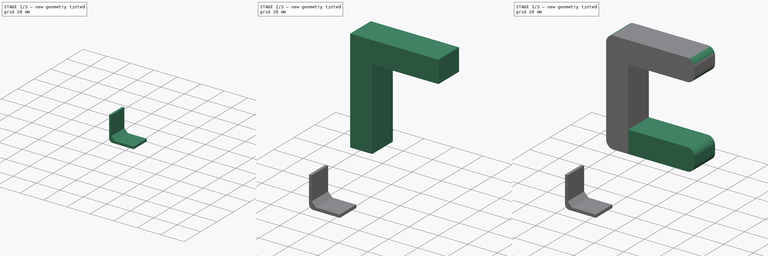
[diagram: build sequence overview — one tinted view per stage of 3, left to right]
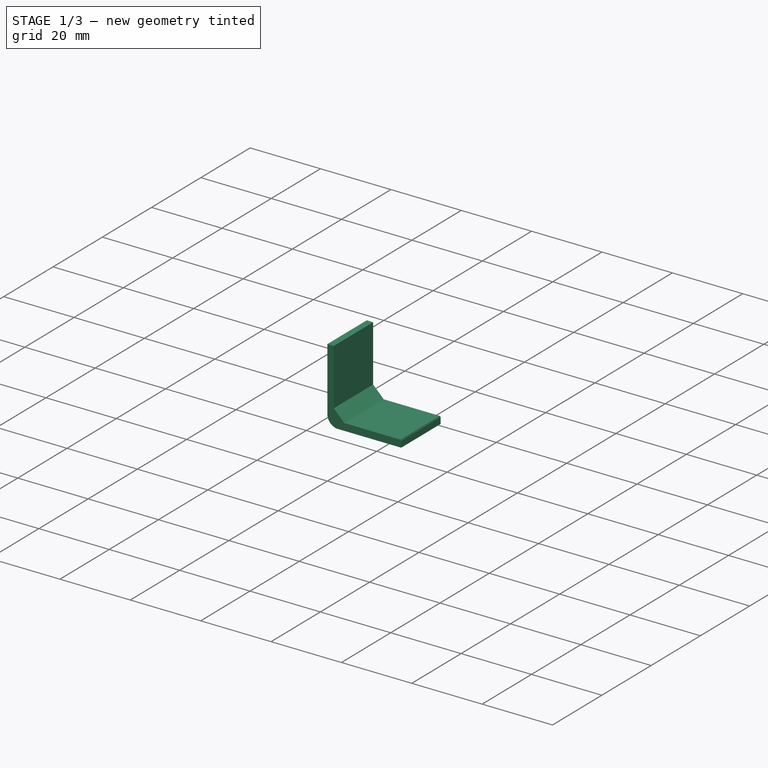
[diagram: stage 1 of 3 — iso view after this stage's code; geometry added in this stage tinted green]
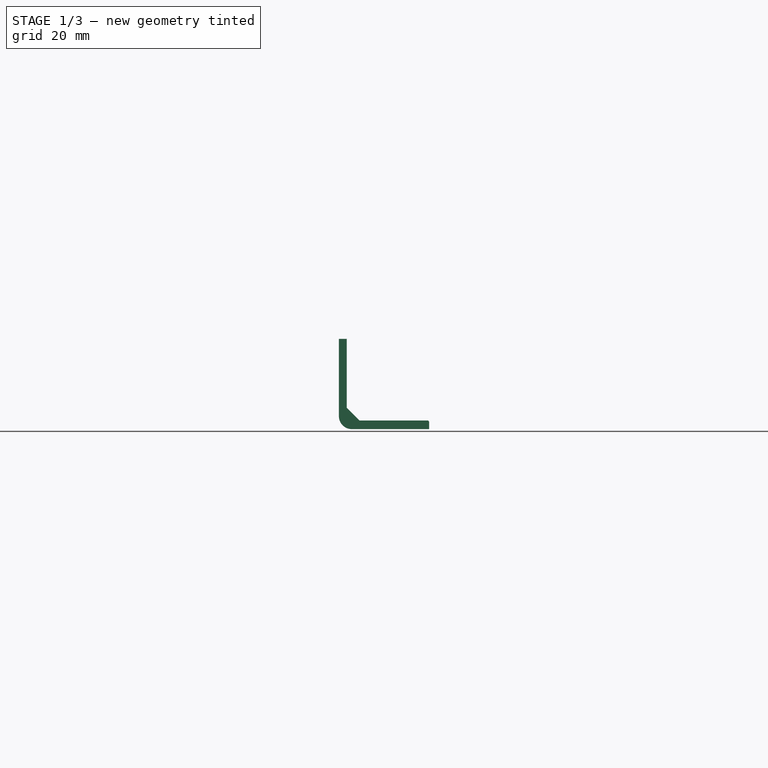
[diagram: stage 1 of 3 — front view after this stage's code; geometry added in this stage tinted green]
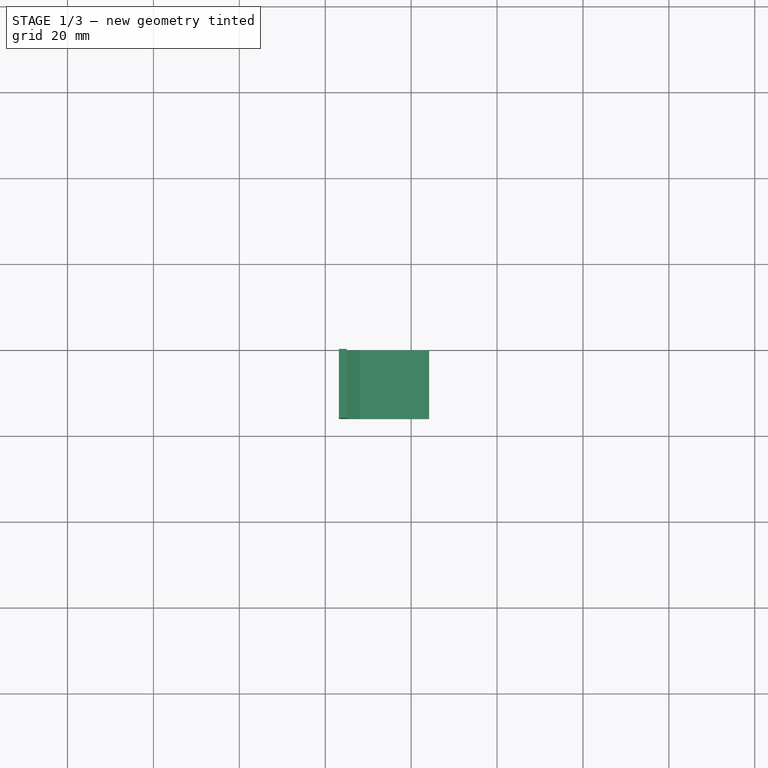
[diagram: stage 1 of 3 — top view after this stage's code; geometry added in this stage tinted green]
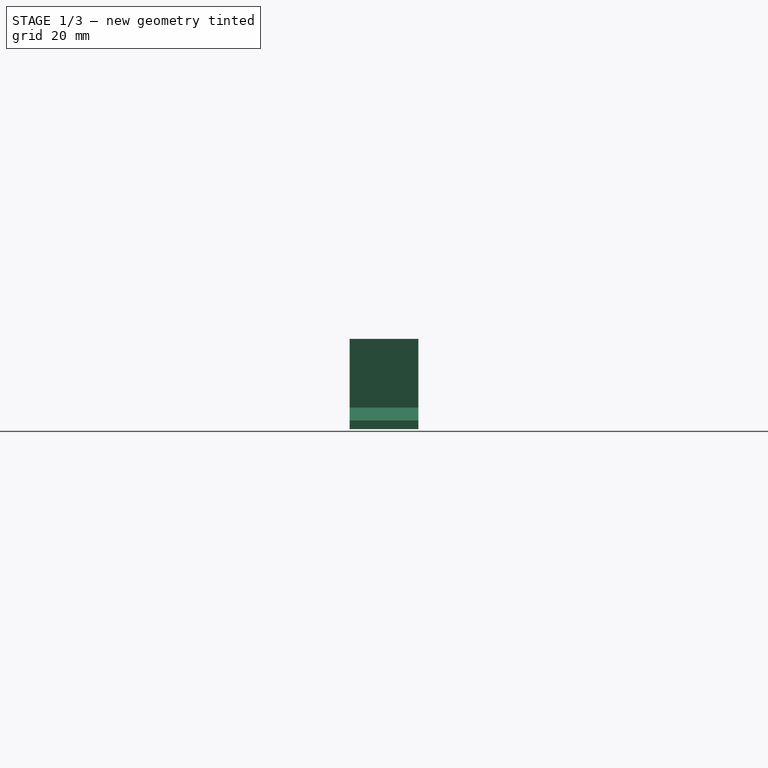
[diagram: stage 1 of 3 — right view after this stage's code; geometry added in this stage tinted green]
FCSTD DOCUMENT  (FreeCAD 0.18R4 (GitTag))
Label: reforzador
License: All rights reserved
LicenseURL: http://en.wikipedia.org/wiki/All_rights_reserved
objects: Part::Box×3, Sketcher::SketchObject×3, Spreadsheet::Sheet×3, PartDesign::Pad×3, PartDesign::Body×3, Part::MultiFuse×1, Part::Fillet×1, Part::Feature×1
note: 18 computed .brp shape members not serialized (recipe doc carries the construction recipe); baked Part::Feature solids carry a one-line shape summary decoded from their .brp

FEATURE [Sketcher::SketchObject] Sketch
  MapMode = 5
  Placement = pos=(0,0,0) rot=(1,0,0;1.5708rad)
  Support = -> [XZ_Plane]
  expr: Constraints[22] = Spreadsheet.radio
  expr: Constraints[17] = Spreadsheet.li
  expr: Constraints[16] = Spreadsheet.le
  expr: Constraints[13] = Spreadsheet.esp
  sketch-geometry (8):
    g0: LineSegment StartX=-15 StartY=-15 StartZ=0 EndX=-16.82 EndY=-15 EndZ=0
    g1: LineSegment StartX=-15 StartY=-15 StartZ=0 EndX=-15 EndY=-31 EndZ=0
    g2: LineSegment StartX=-15 StartY=-31 StartZ=0 EndX=-11.82 EndY=-34.18 EndZ=0
    g3: LineSegment StartX=-11.82 StartY=-34.18 StartZ=0 EndX=4.18 EndY=-34.18 EndZ=0
    g4: LineSegment StartX=4.18 StartY=-34.18 StartZ=0 EndX=4.18 EndY=-36 EndZ=0
    g5: LineSegment StartX=4.18 StartY=-36 StartZ=0 EndX=-13.82 EndY=-36 EndZ=0
    g6: LineSegment StartX=-16.82 StartY=-33 StartZ=0 EndX=-16.82 EndY=-15 EndZ=0
    g7: ArcOfCircle CenterX=-13.82 CenterY=-33 CenterZ=0 NormalX=0 NormalY=0 NormalZ=1 AngleXU=0 Radius=3 StartAngle=3.14159 EndAngle=4.71239
  constraints (23):
    c: Horizontal(g0)
    c: Vertical(g1)
    c: Coincident(g1,g2)
    c: Coincident(g2,g3)
    c: Horizontal(g3)
    c: Coincident(g3,g4)
    c: Vertical(g4)
    c: Coincident(g4,g5)
    c: Horizontal(g5)
    c: Vertical(g6)
    c: Coincident(g6,g0)
    c: Coincident(g1,g0)
    c: Equal(g0,g4)
    c: DistanceY(g4,g3) = 1.82
    c: Equal(g5,g6)
    c: Equal(g3,g1)
    c: DistanceX(g0,g4) = 21
    c: DistanceX(g2,g3) = 16
    c: DistanceX(g0,g-1) = 15
    c: DistanceY(g0,g-1) = 15
    c: Tangent(g6,g7) = 1.5708
    c: Tangent(g5,g7) = 1.5708
    c: Radius(g7) = 3
FEATURE [Spreadsheet::Sheet] Spreadsheet
  cells = A1=espesor; B1(esp)=1.82; A2=largo exterior; B2(le)=21; A3=largo interior; B3(li)=16; A5=radio; B5(radio)=3; A7=pad; B7(pad)=15
FEATURE [PartDesign::Pad] Pad
  Length = 16
  Length2 = 100
  Placement = pos=(0,0,0) rot=(1,0,0;1.5708rad)
  Profile = -> Sketch
  Type = 0
  expr: Length = Spreadsheet.pad + 1
FEATURE [PartDesign::Body] Body  label="angulo"
  Group = -> [Sketch,Pad]
  Origin = -> Origin
  Tip = -> Pad
FEATURE [Sketcher::SketchObject] Sketch001
  MapMode = 5
  Placement = pos=(0,0,0) rot=(1,0,0;1.5708rad)
  Support = -> [XZ_Plane001]
  expr: Constraints[22] = Spreadsheet001.radio
  expr: Constraints[17] = Spreadsheet001.li
  expr: Constraints[16] = Spreadsheet001.le
  expr: Constraints[13] = Spreadsheet001.esp
  sketch-geometry (8):
    g0: LineSegment StartX=-15 StartY=-15 StartZ=0 EndX=-16 EndY=-15 EndZ=0
    g1: LineSegment StartX=-15 StartY=-15 StartZ=0 EndX=-15 EndY=-31 EndZ=0
    g2: LineSegment StartX=-15 StartY=-31 StartZ=0 EndX=-12 EndY=-34 EndZ=0
    g3: LineSegment StartX=-12 StartY=-34 StartZ=0 EndX=4 EndY=-34 EndZ=0
    g4: LineSegment StartX=4 StartY=-34 StartZ=0 EndX=4 EndY=-35 EndZ=0
    g5: LineSegment StartX=4 StartY=-35 StartZ=0 EndX=-12 EndY=-35 EndZ=0
    g6: LineSegment StartX=-16 StartY=-31 StartZ=0 EndX=-16 EndY=-15 EndZ=0
    g7: ArcOfCircle CenterX=-12 CenterY=-31 CenterZ=0 NormalX=0 NormalY=0 NormalZ=1 AngleXU=0 Radius=4 StartAngle=3.14159 EndAngle=4.71239
  constraints (23):
    c: Horizontal(g0)
    c: Vertical(g1)
    c: Coincident(g1,g2)
    c: Coincident(g2,g3)
    c: Horizontal(g3)
    c: Coincident(g3,g4)
    c: Vertical(g4)
    c: Coincident(g4,g5)
    c: Horizontal(g5)
    c: Vertical(g6)
    c: Coincident(g6,g0)
    c: Coincident(g1,g0)
    c: Equal(g0,g4)
    c: DistanceY(g4,g3) = 1
    c: Equal(g5,g6)
    c: Equal(g3,g1)
    c: DistanceX(g0,g4) = 20
    c: DistanceX(g2,g3) = 16
    c: DistanceX(g0,g-1) = 15
    c: DistanceY(g0,g-1) = 15
    c: Tangent(g6,g7) = 1.5708
    c: Tangent(g5,g7) = 1.5708
    c: Radius(g7) = 4
FEATURE [Spreadsheet::Sheet] Spreadsheet001
  cells = A1=espesor; B1(esp)=1; A2=largo exterior; B2(le)=20; A3=largo interior; B3(li)=16; A5=radio; B5(radio)=4; A7=pad; B7(pad)=15
FEATURE [PartDesign::Pad] Pad001
  Length = 16
  Length2 = 100
  Placement = pos=(0,0,0) rot=(1,0,0;1.5708rad)
  Profile = -> Sketch001
  Type = 0
  expr: Length = Spreadsheet001.pad + 1
FEATURE [PartDesign::Body] Body001  label="angulo001"
  Group = -> [Sketch001,Pad001]
  Origin = -> Origin001
  Placement = pos=(21,16,40) rot=(0,0,1;0rad)
  Tip = -> Pad001
FEATURE [Spreadsheet::Sheet] Spreadsheet002
  cells = A1=espesor; B1(esp)=1; A2=largo exterior; B2(le)=20; A3=largo interior; B3(li)=16; A5=radio; B5(radio)=4; A7=pad; B7(pad)=15
FEATURE [Sketcher::SketchObject] Sketch002
  MapMode = 5
  Placement = pos=(0,0,0) rot=(1,0,0;1.5708rad)
  Support = -> [XZ_Plane002]
  expr: Constraints[22] = Spreadsheet002.radio
  expr: Constraints[17] = Spreadsheet002.li
  expr: Constraints[16] = Spreadsheet002.le
  expr: Constraints[13] = Spreadsheet002.esp
  sketch-geometry (8):
    g0: LineSegment StartX=-15 StartY=-15 StartZ=0 EndX=-16 EndY=-15 EndZ=0
    g1: LineSegment StartX=-15 StartY=-15 StartZ=0 EndX=-15 EndY=-31 EndZ=0
    g2: LineSegment StartX=-15 StartY=-31 StartZ=0 EndX=-12 EndY=-34 EndZ=0
    g3: LineSegment StartX=-12 StartY=-34 StartZ=0 EndX=4 EndY=-34 EndZ=0
    g4: LineSegment StartX=4 StartY=-34 StartZ=0 EndX=4 EndY=-35 EndZ=0
    g5: LineSegment StartX=4 StartY=-35 StartZ=0 EndX=-12 EndY=-35 EndZ=0
    g6: LineSegment StartX=-16 StartY=-31 StartZ=0 EndX=-16 EndY=-15 EndZ=0
    g7: ArcOfCircle CenterX=-12 CenterY=-31 CenterZ=0 NormalX=0 NormalY=0 NormalZ=1 AngleXU=0 Radius=4 StartAngle=3.14159 EndAngle=4.71239
  constraints (23):
    c: Horizontal(g0)
    c: Vertical(g1)
    c: Coincident(g1,g2)
    c: Coincident(g2,g3)
    c: Horizontal(g3)
    c: Coincident(g3,g4)
    c: Vertical(g4)
    c: Coincident(g4,g5)
    c: Horizontal(g5)
    c: Vertical(g6)
    c: Coincident(g6,g0)
    c: Coincident(g1,g0)
    c: Equal(g0,g4)
    c: DistanceY(g4,g3) = 1
    c: Equal(g5,g6)
    c: Equal(g3,g1)
    c: DistanceX(g0,g4) = 20
    c: DistanceX(g2,g3) = 16
    c: DistanceX(g0,g-1) = 15
    c: DistanceY(g0,g-1) = 15
    c: Tangent(g6,g7) = 1.5708
    c: Tangent(g5,g7) = 1.5708
    c: Radius(g7) = 4
FEATURE [PartDesign::Pad] Pad002
  Length = 16
  Length2 = 100
  Placement = pos=(0,0,0) rot=(1,0,0;1.5708rad)
  Profile = -> Sketch002
  Type = 0
  expr: Length = Spreadsheet002.pad + 1
FEATURE [PartDesign::Body] Body002  label="angulo002"
  Group = -> [Sketch002,Pad002]
  Origin = -> Origin002
  Placement = pos=(21,4,30) rot=(1,0,0;3.14159rad)
  Tip = -> Pad002
FEATURE [Part::Feature] Body003  label="angulo003"
  shape: bbox 21 x 16 x 21 mm, 10 faces (baked)
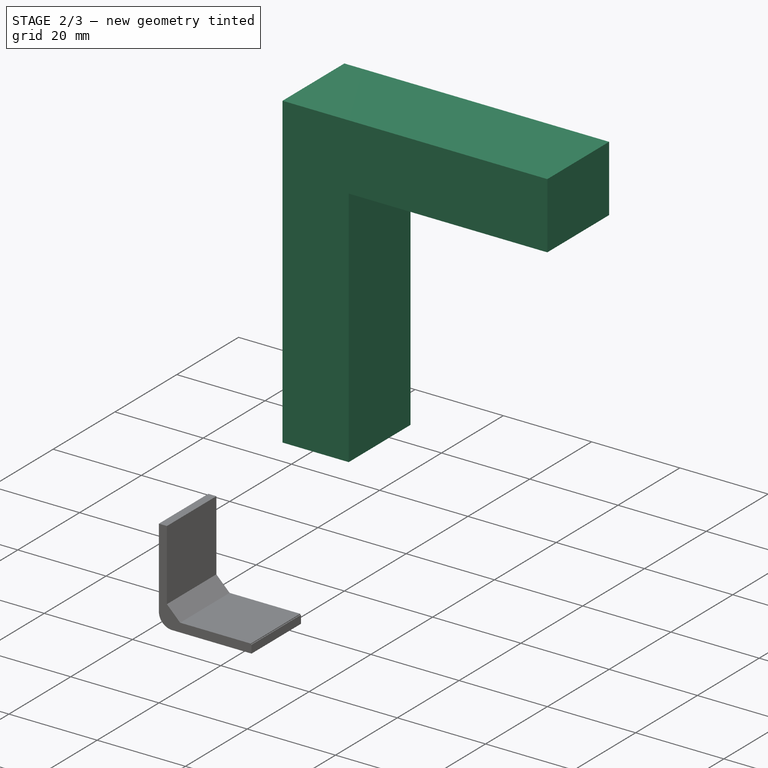
[diagram: stage 2 of 3 — iso view after this stage's code; geometry added in this stage tinted green]
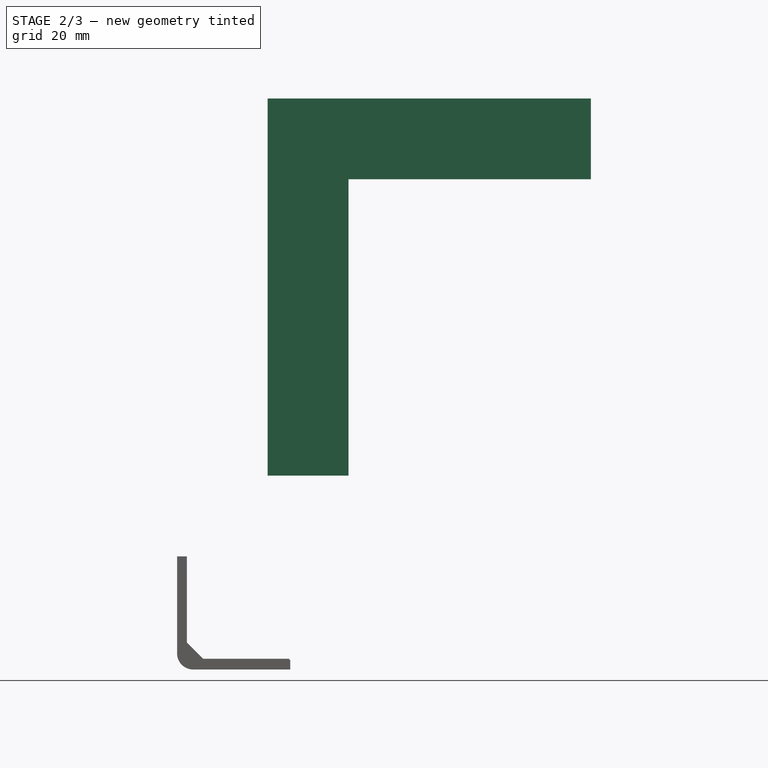
[diagram: stage 2 of 3 — front view after this stage's code; geometry added in this stage tinted green]
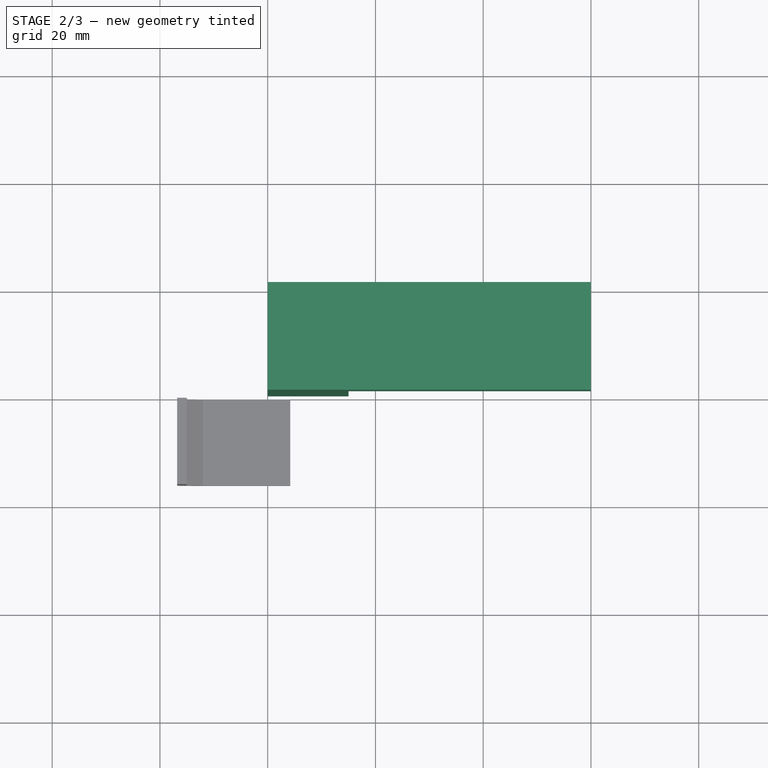
[diagram: stage 2 of 3 — top view after this stage's code; geometry added in this stage tinted green]
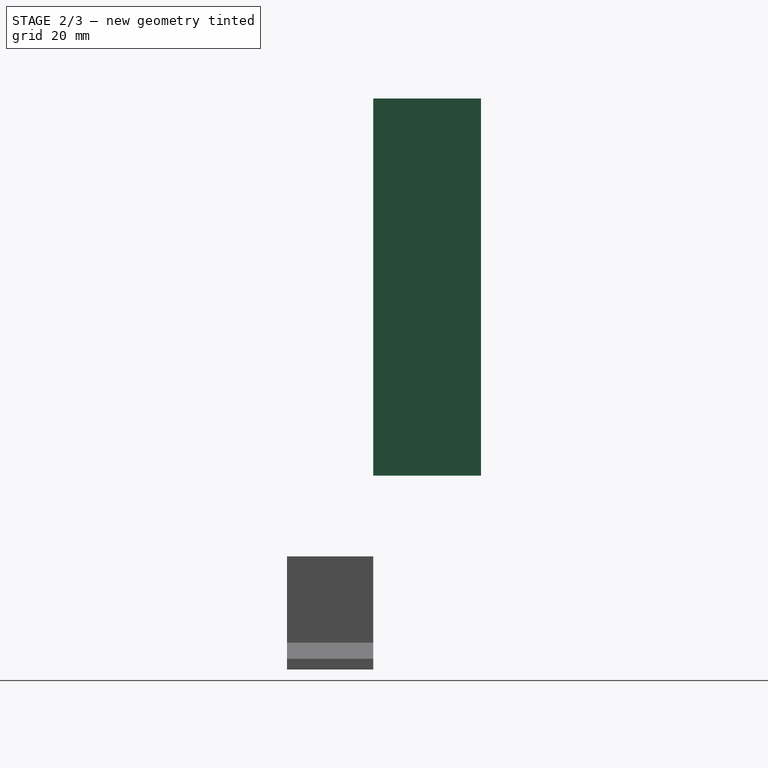
[diagram: stage 2 of 3 — right view after this stage's code; geometry added in this stage tinted green]
FEATURE [Part::Box] Box001  label="Cube001"
  AttacherType = Attacher::AttachEngine3D
  Height = 70
  Length = 15
  Width = 20
FEATURE [Part::Box] Box002  label="Cube002"
  AttacherType = Attacher::AttachEngine3D
  Height = 15
  Length = 60
  Placement = pos=(0,0,55) rot=(0,0,1;0rad)
  Width = 20
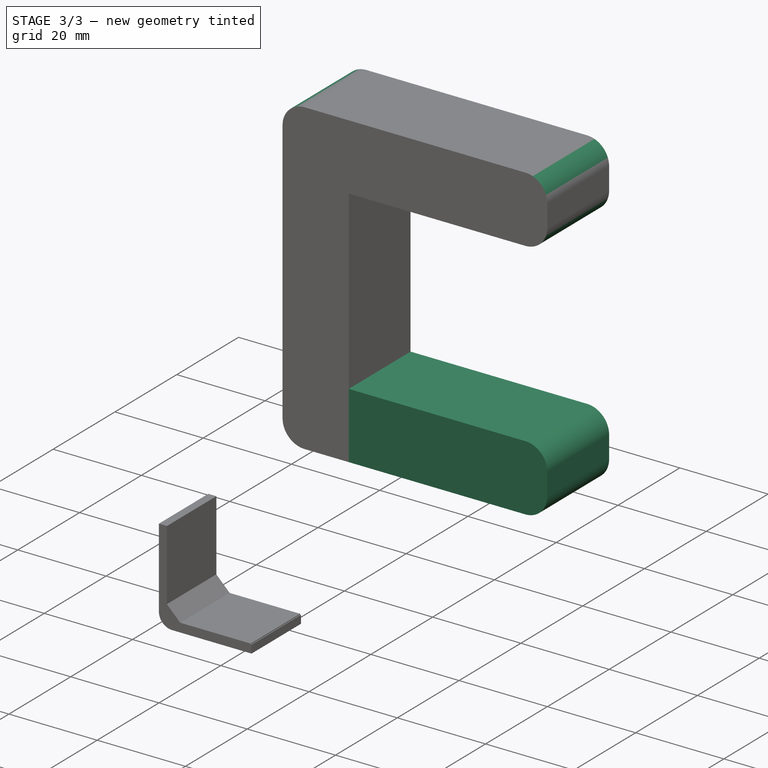
[diagram: stage 3 of 3 — iso view after this stage's code; geometry added in this stage tinted green]
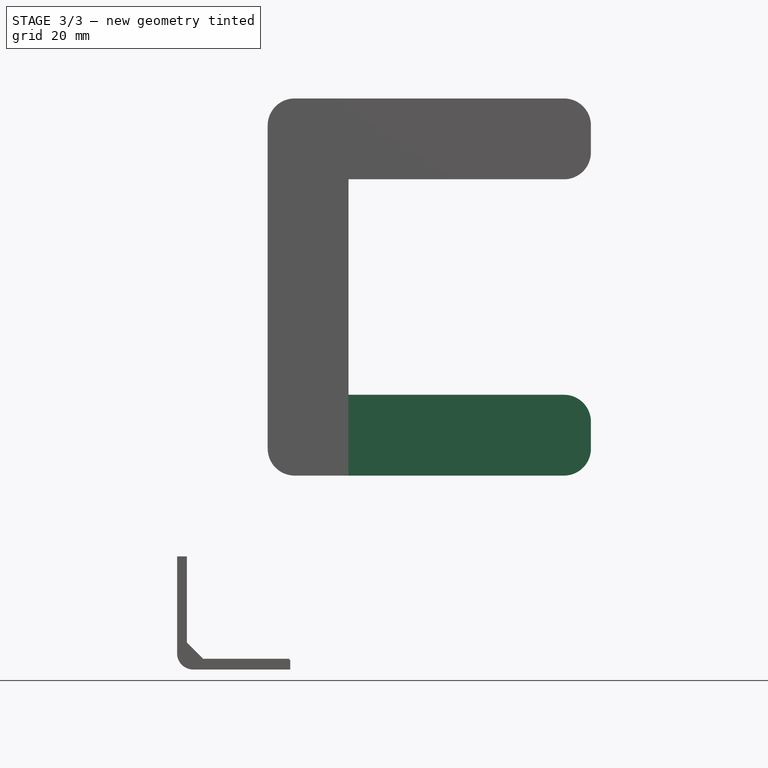
[diagram: stage 3 of 3 — front view after this stage's code; geometry added in this stage tinted green]
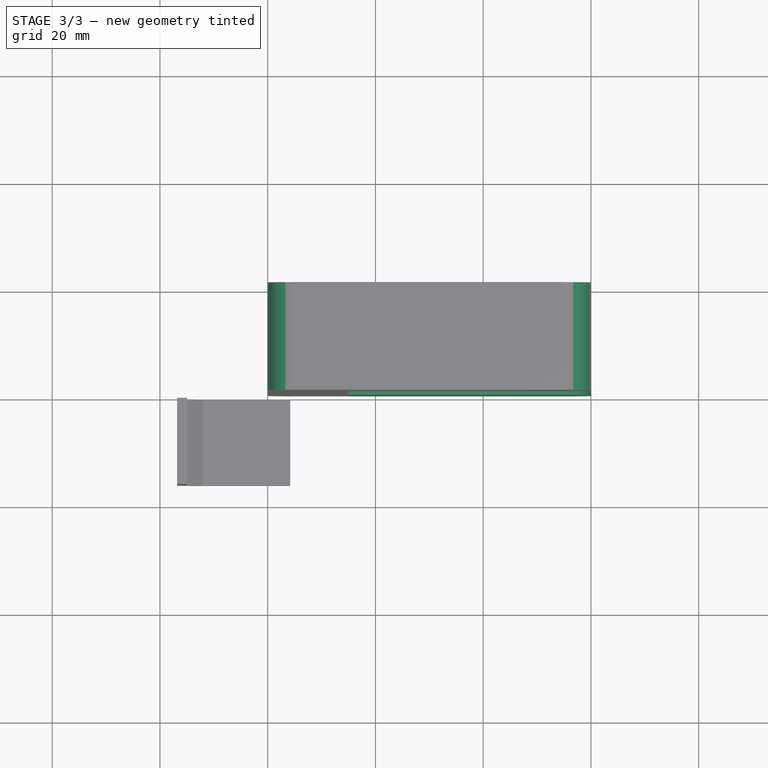
[diagram: stage 3 of 3 — top view after this stage's code; geometry added in this stage tinted green]
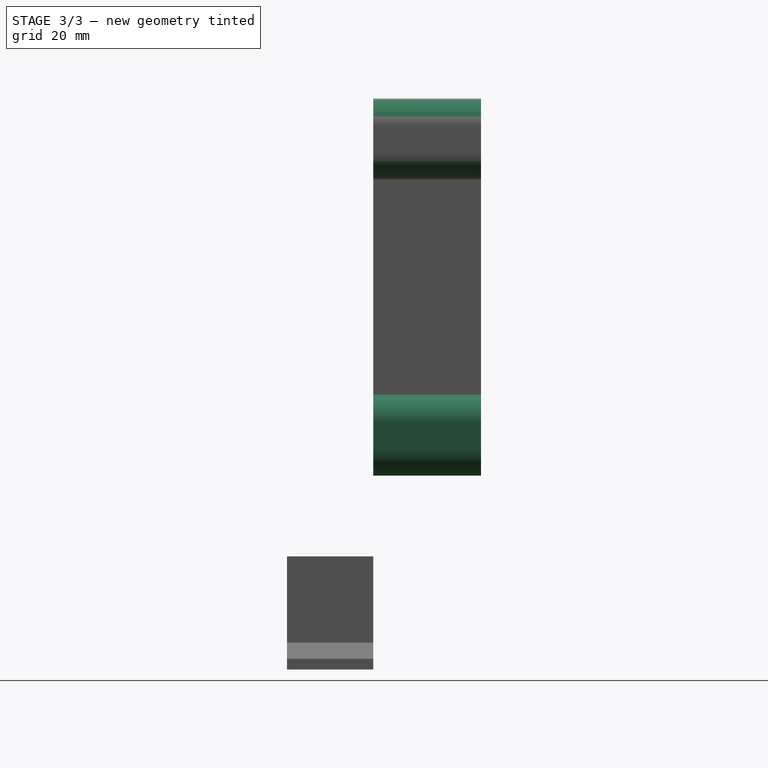
[diagram: stage 3 of 3 — right view after this stage's code; geometry added in this stage tinted green]
FEATURE [Part::Box] Box  label="Cube"
  AttacherType = Attacher::AttachEngine3D
  Height = 15
  Length = 60
  Width = 20
FEATURE [Part::MultiFuse] Fusion
  Shapes = -> [Box002,Box,Box001]
FEATURE [Part::Fillet] Fillet
  Base = -> Fusion
  Edges = 6 edges r=5: [Edge2,Edge21,Edge28,Edge33,Edge41,Edge44]
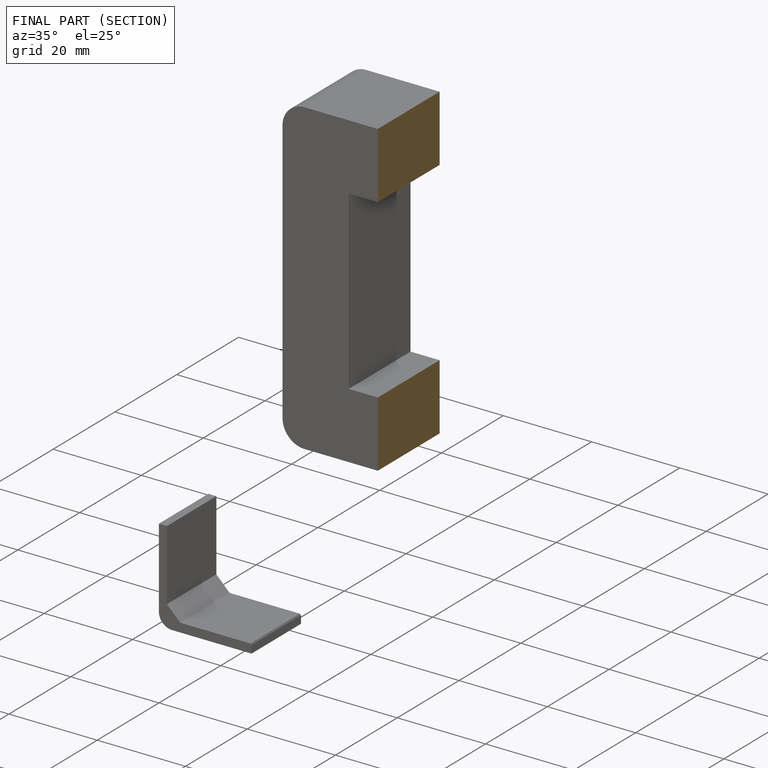
[diagram: finished part — half-section view (interior)]
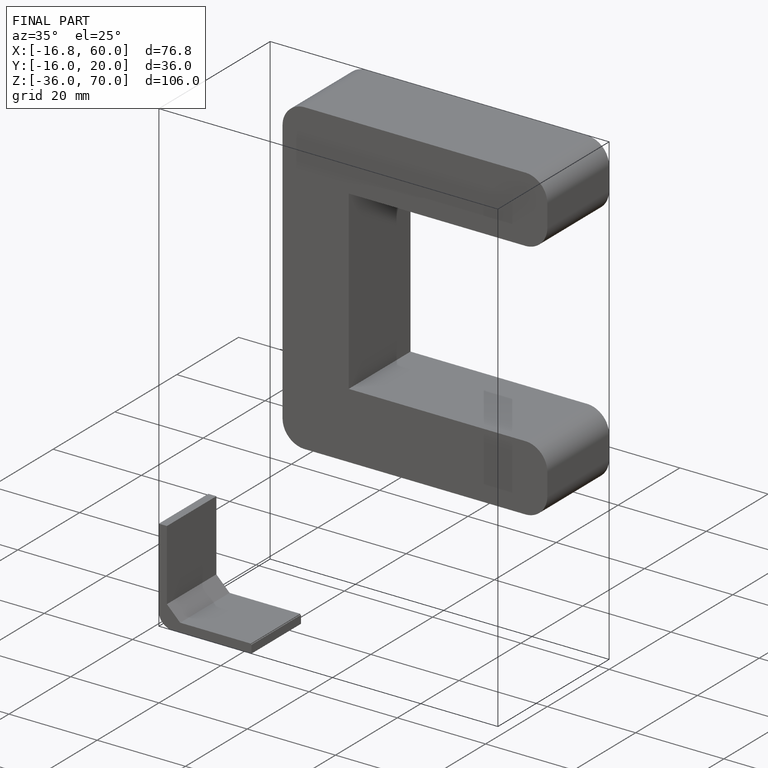
[diagram: finished part — iso view with bounding-box wireframe]
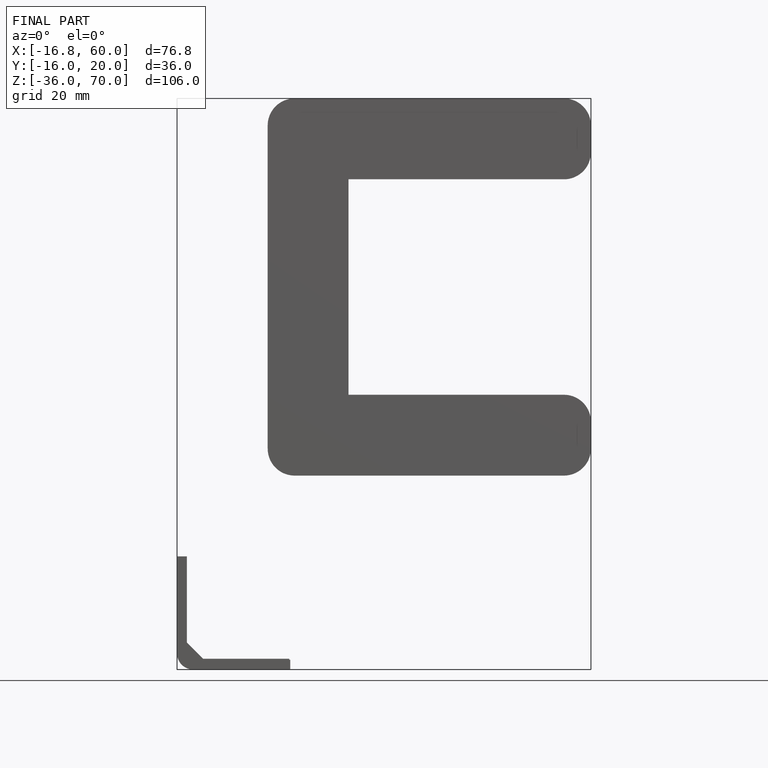
[diagram: finished part — front view with bounding-box wireframe]
